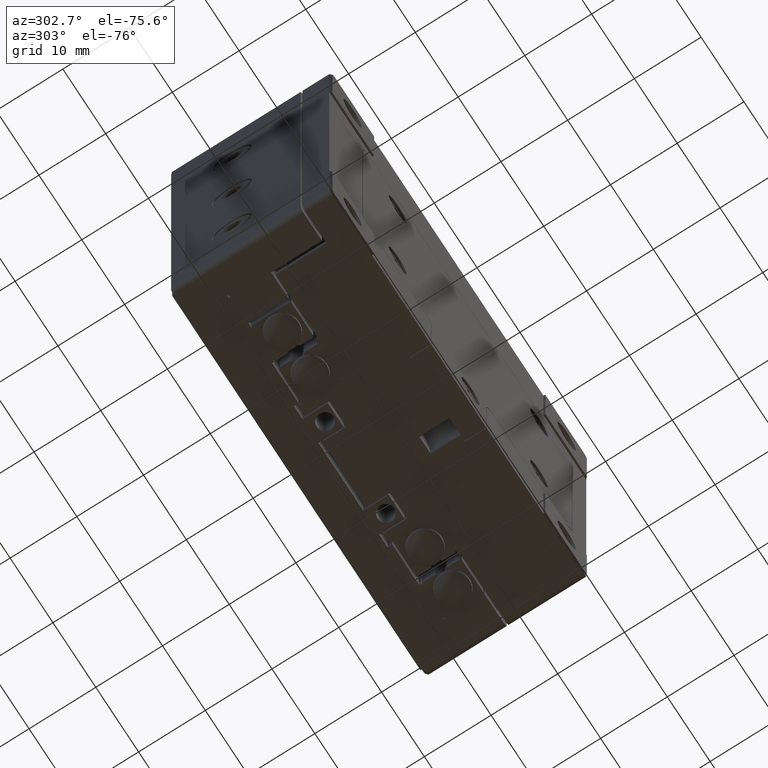
[diagram: clean part render]
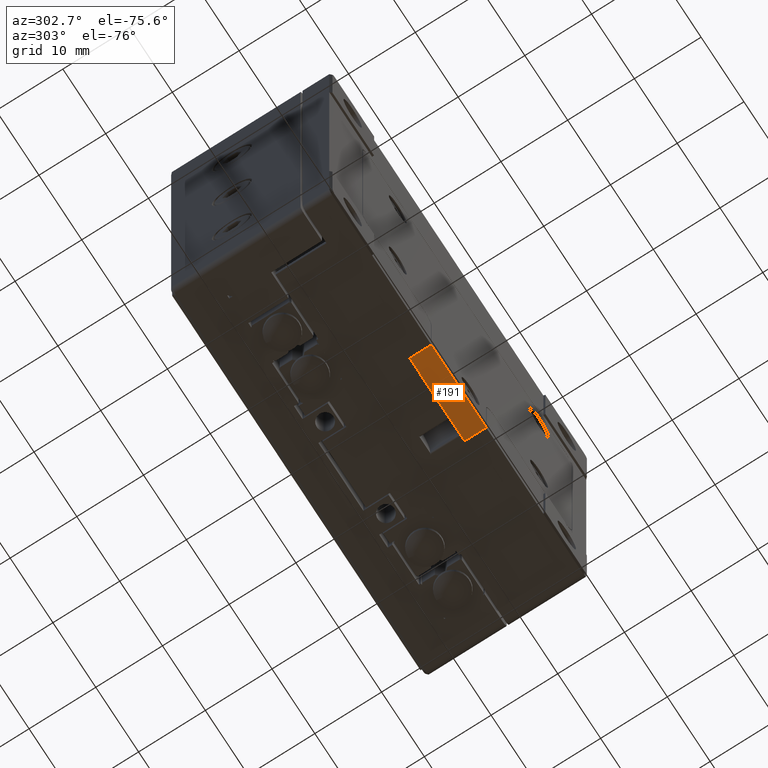
[diagram: same view with one face highlighted and labeled with its STEP entity id]
A machine part, auxiliary view. The second image highlights one B-rep face of the part: STEP entity #191.
In plain terms, the highlighted planar face has unit normal (0, 0, 1).
Its self-contained STEP definition (entity closure, byte-faithful):
#191 = ADVANCED_FACE ( 'NONE', ( #10490 ), #3010, .F. ) ;
#625 = AXIS2_PLACEMENT_3D ( 'NONE', #23999, #18662, #18422 ) ;
#1252 = EDGE_LOOP ( 'NONE', ( #10135, #6945, #21668, #22423 ) ) ;
#1419 = EDGE_CURVE ( 'NONE', #19200, #12422, #13778, .T. ) ;
#1689 = CARTESIAN_POINT ( 'NONE',  ( 26.94628378378379807, 0.000000000000000000, 19.73952702702700179 ) ) ;
#2650 = CARTESIAN_POINT ( 'NONE',  ( 26.94628378378379807, 3.250000000000000000, 6.939527027027029504 ) ) ;
#2788 = EDGE_CURVE ( 'NONE', #9131, #22259, #16673, .T. ) ;
#3010 = PLANE ( 'NONE',  #625 ) ;
#3118 = EDGE_CURVE ( 'NONE', #22259, #12422, #5484, .T. ) ;
#3943 = DIRECTION ( 'NONE',  ( 0.000000000000000000, 0.000000000000000000, -1.000000000000000000 ) ) ;
#4313 = VECTOR ( 'NONE', #24302, 1000.000000000000000 ) ;
#5484 = LINE ( 'NONE', #2650, #10432 ) ;
#6774 = CARTESIAN_POINT ( 'NONE',  ( 26.94628378378379807, 3.250000000000000000, 19.73952702702700179 ) ) ;
#6945 = ORIENTED_EDGE ( 'NONE', *, *, #3118, .F. ) ;
#7189 = CARTESIAN_POINT ( 'NONE',  ( 26.94628378378379807, 0.000000000000000000, 6.939527027027029504 ) ) ;
#8242 = CARTESIAN_POINT ( 'NONE',  ( 26.94628378378379807, 0.000000000000000000, 6.939527027027029504 ) ) ;
#8933 = EDGE_CURVE ( 'NONE', #9131, #19200, #14706, .T. ) ;
#9131 = VERTEX_POINT ( 'NONE', #14965 ) ;
#10106 = CARTESIAN_POINT ( 'NONE',  ( 26.94628378378379807, 3.250000000000000000, 6.939527027027029504 ) ) ;
#10135 = ORIENTED_EDGE ( 'NONE', *, *, #1419, .T. ) ;
#10432 = VECTOR ( 'NONE', #17924, 1000.000000000000000 ) ;
#10490 = FACE_OUTER_BOUND ( 'NONE', #1252, .T. ) ;
#10692 = DIRECTION ( 'NONE',  ( 0.000000000000000000, -1.000000000000000000, 0.000000000000000000 ) ) ;
#12422 = VERTEX_POINT ( 'NONE', #7189 ) ;
#13778 = LINE ( 'NONE', #8242, #20713 ) ;
#14706 = LINE ( 'NONE', #6774, #22991 ) ;
#14965 = CARTESIAN_POINT ( 'NONE',  ( 26.94628378378379807, 3.250000000000000000, 19.73952702702700179 ) ) ;
#16673 = LINE ( 'NONE', #24386, #4313 ) ;
#17924 = DIRECTION ( 'NONE',  ( 0.000000000000000000, -1.000000000000000000, 0.000000000000000000 ) ) ;
#18422 = DIRECTION ( 'NONE',  ( 0.000000000000000000, 0.000000000000000000, 1.000000000000000000 ) ) ;
#18662 = DIRECTION ( 'NONE',  ( -1.000000000000000000, 0.000000000000000000, 0.000000000000000000 ) ) ;
#19200 = VERTEX_POINT ( 'NONE', #1689 ) ;
#20713 = VECTOR ( 'NONE', #3943, 1000.000000000000000 ) ;
#21668 = ORIENTED_EDGE ( 'NONE', *, *, #2788, .F. ) ;
#22259 = VERTEX_POINT ( 'NONE', #10106 ) ;
#22423 = ORIENTED_EDGE ( 'NONE', *, *, #8933, .T. ) ;
#22991 = VECTOR ( 'NONE', #10692, 1000.000000000000000 ) ;
#23999 = CARTESIAN_POINT ( 'NONE',  ( 26.94628378378379807, 3.250000000000000000, 6.939527027027029504 ) ) ;
#24302 = DIRECTION ( 'NONE',  ( 0.000000000000000000, 0.000000000000000000, -1.000000000000000000 ) ) ;
#24386 = CARTESIAN_POINT ( 'NONE',  ( 26.94628378378379807, 3.250000000000000000, 6.939527027027029504 ) ) ;